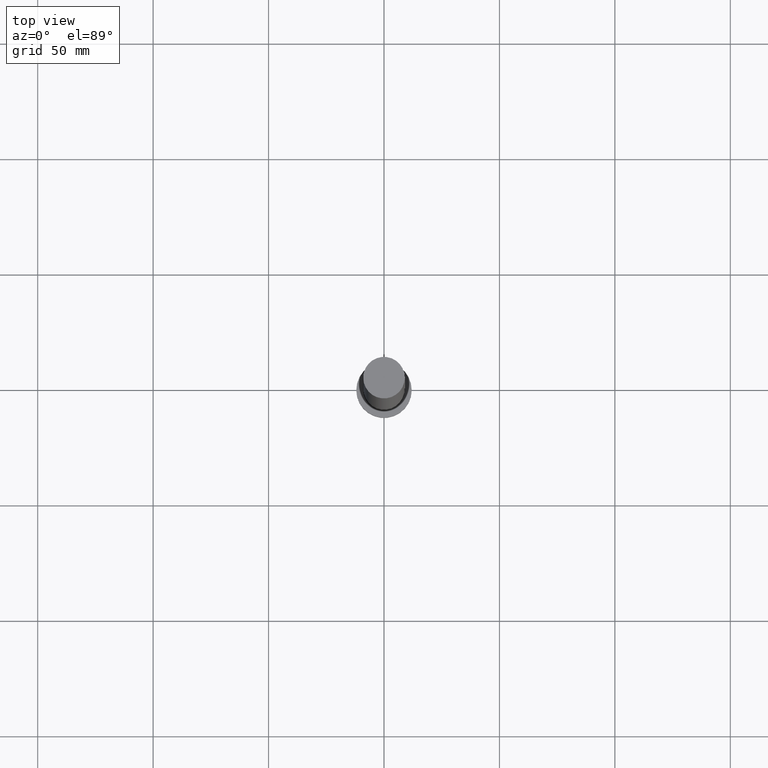
[diagram: clean part render]
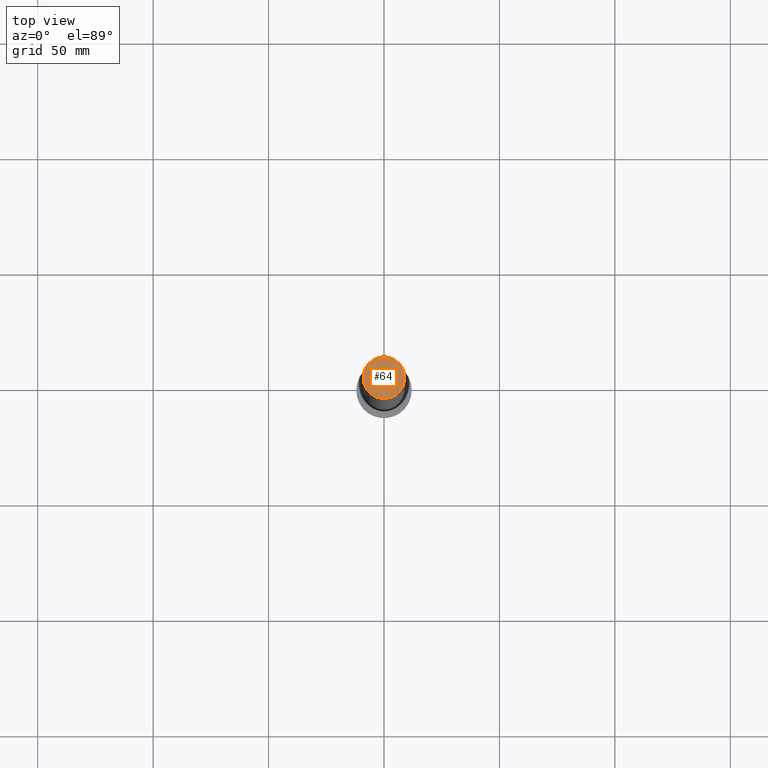
[diagram: same view with one face highlighted and labeled with its STEP entity id]
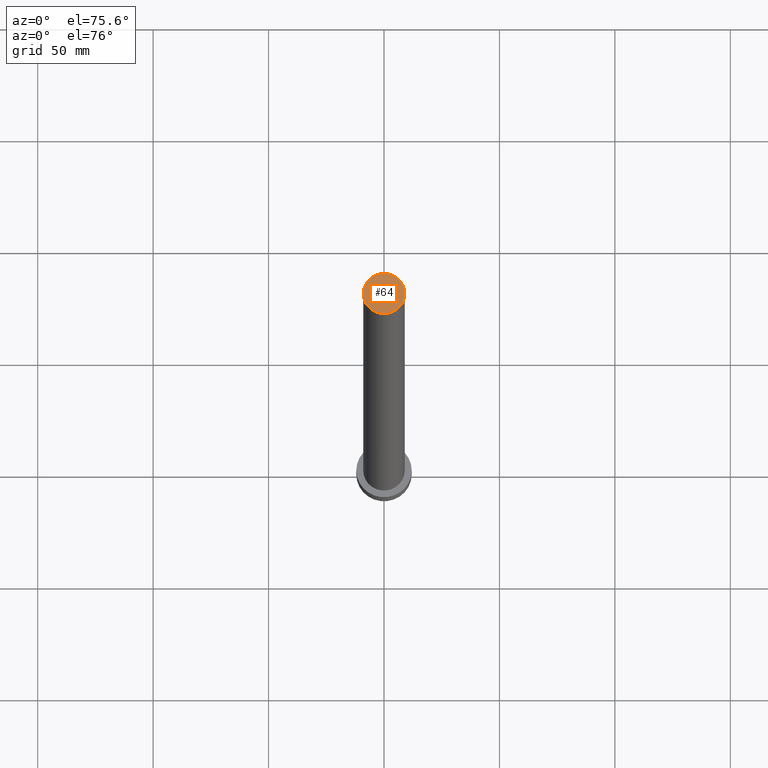
[diagram: same view with one face highlighted and labeled with its STEP entity id]
A machine part, top view. The second image highlights one B-rep face of the part: STEP entity #64.
A second angle (auxiliary view) of the same face is appended — the face is thin or edge-on in the first view.
In plain terms, the highlighted planar face has unit normal (0, 0, 1).
Its self-contained STEP definition (entity closure, byte-faithful):
#15 = CIRCLE ( 'NONE', #199, 9.000000000000000000 ) ;
#27 = CIRCLE ( 'NONE', #33, 9.000000000000000000 ) ;
#33 = AXIS2_PLACEMENT_3D ( 'NONE', #213, #252, #69 ) ;
#47 = DIRECTION ( 'NONE',  ( 1.000000000000000000, 0.000000000000000000, 0.000000000000000000 ) ) ;
#49 = EDGE_CURVE ( 'NONE', #84, #205, #15, .T. ) ;
#50 = CARTESIAN_POINT ( 'NONE',  ( 9.000000000000000000, 1.102182119232617714E-15, 315.0000000000000000 ) ) ;
#64 = ADVANCED_FACE ( 'NONE', ( #148 ), #71, .T. ) ;
#68 = DIRECTION ( 'NONE',  ( 0.000000000000000000, 0.000000000000000000, 1.000000000000000000 ) ) ;
#69 = DIRECTION ( 'NONE',  ( 1.000000000000000000, 0.000000000000000000, 0.000000000000000000 ) ) ;
#71 = PLANE ( 'NONE',  #180 ) ;
#73 = CARTESIAN_POINT ( 'NONE',  ( -9.000000000000000000, 0.000000000000000000, 315.0000000000000000 ) ) ;
#81 = CARTESIAN_POINT ( 'NONE',  ( 0.000000000000000000, 0.000000000000000000, 315.0000000000000000 ) ) ;
#84 = VERTEX_POINT ( 'NONE', #50 ) ;
#148 = FACE_OUTER_BOUND ( 'NONE', #203, .T. ) ;
#165 = DIRECTION ( 'NONE',  ( 0.000000000000000000, 0.000000000000000000, 1.000000000000000000 ) ) ;
#180 = AXIS2_PLACEMENT_3D ( 'NONE', #230, #68, #207 ) ;
#183 = ORIENTED_EDGE ( 'NONE', *, *, #49, .T. ) ;
#199 = AXIS2_PLACEMENT_3D ( 'NONE', #81, #165, #47 ) ;
#203 = EDGE_LOOP ( 'NONE', ( #246, #183 ) ) ;
#205 = VERTEX_POINT ( 'NONE', #73 ) ;
#207 = DIRECTION ( 'NONE',  ( 1.000000000000000000, 0.000000000000000000, -0.000000000000000000 ) ) ;
#213 = CARTESIAN_POINT ( 'NONE',  ( 0.000000000000000000, 0.000000000000000000, 315.0000000000000000 ) ) ;
#224 = EDGE_CURVE ( 'NONE', #205, #84, #27, .T. ) ;
#230 = CARTESIAN_POINT ( 'NONE',  ( 0.000000000000000000, 0.000000000000000000, 315.0000000000000000 ) ) ;
#246 = ORIENTED_EDGE ( 'NONE', *, *, #224, .T. ) ;
#252 = DIRECTION ( 'NONE',  ( 0.000000000000000000, 0.000000000000000000, 1.000000000000000000 ) ) ;